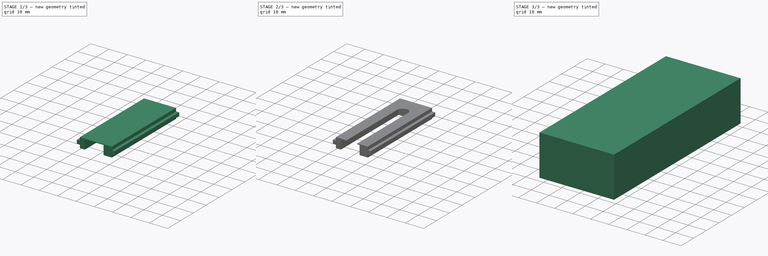
[diagram: build sequence overview — one tinted view per stage of 3, left to right]
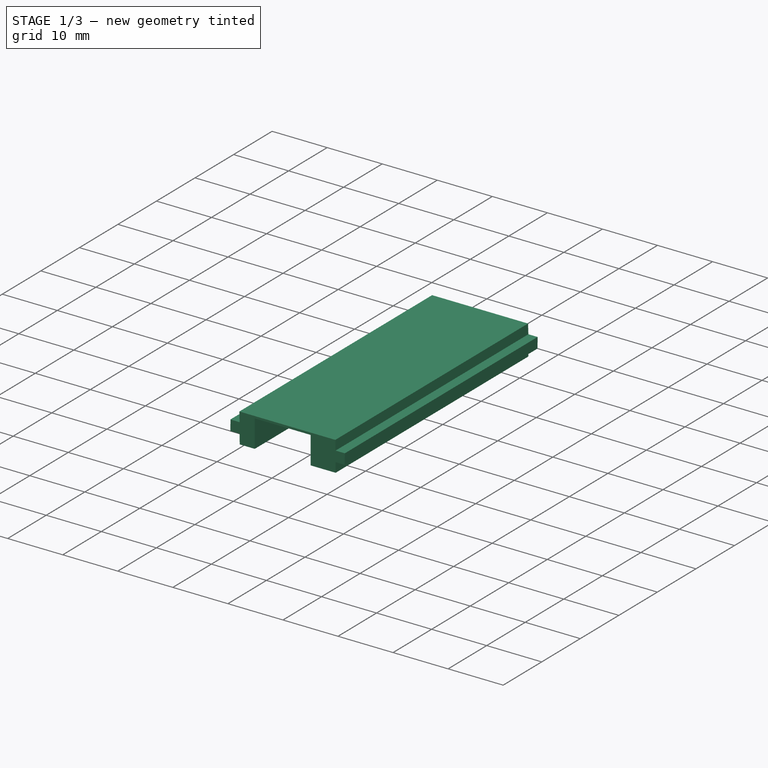
[diagram: stage 1 of 3 — iso view after this stage's code; geometry added in this stage tinted green]
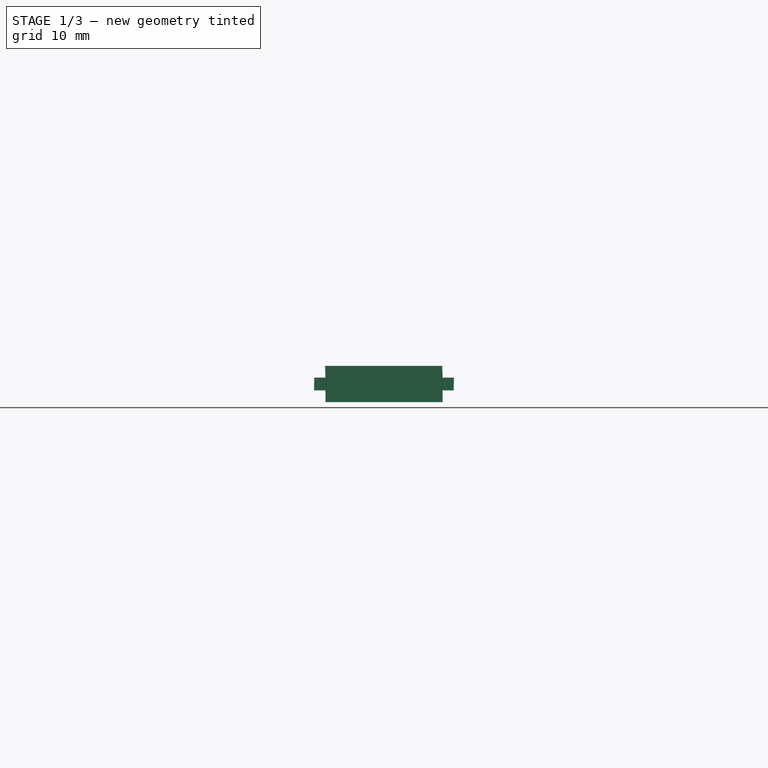
[diagram: stage 1 of 3 — front view after this stage's code; geometry added in this stage tinted green]
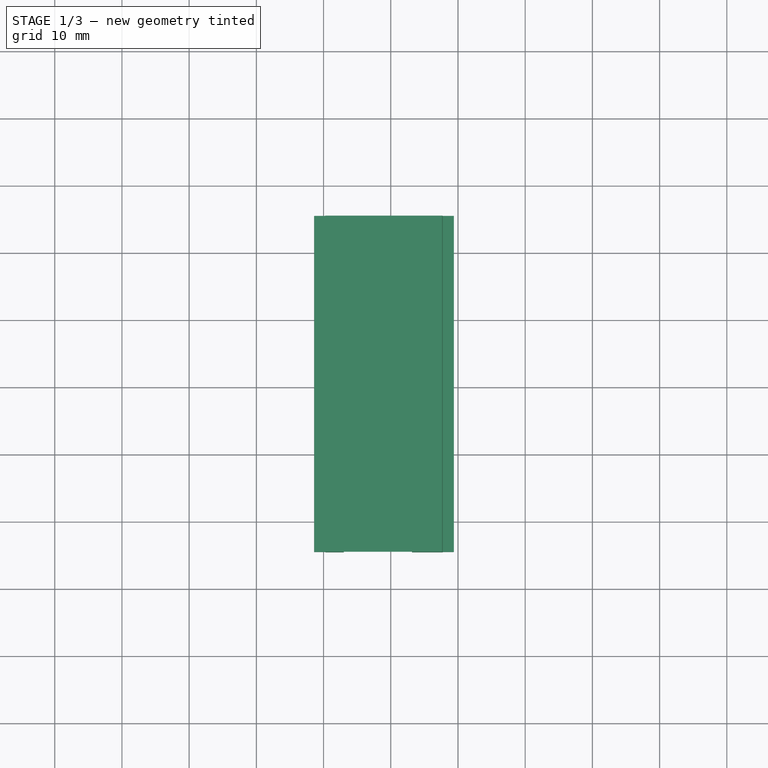
[diagram: stage 1 of 3 — top view after this stage's code; geometry added in this stage tinted green]
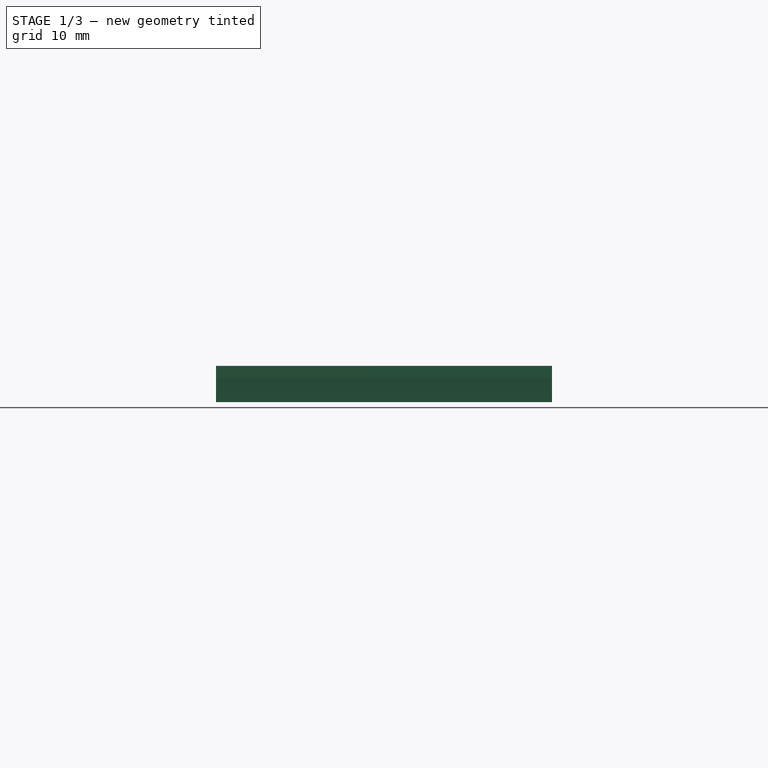
[diagram: stage 1 of 3 — right view after this stage's code; geometry added in this stage tinted green]
FCSTD DOCUMENT  (FreeCAD 0.16R6705 (Git))
Label: carrello_servo
License: All rights reserved
LicenseURL: http://it.wikipedia.org/wiki/<copyright redacted>
objects: Sketcher::SketchObject×5, PartDesign::Pocket×3, PartDesign::Pad×2, PartDesign::LinearPattern×1
note: 16 computed .brp shape members not serialized (recipe doc carries the construction recipe); baked Part::Feature solids carry a one-line shape summary decoded from their .brp

FEATURE [Sketcher::SketchObject] Sketch008
  Placement = pos=(0,25.5,0) rot=(0,0.707107,0.707107;3.14159rad)
  sketch-geometry (12):
    g0: LineSegment StartX=-87.7021 StartY=2.79224 StartZ=0 EndX=-89.376 EndY=2.79224 EndZ=0
    g1: LineSegment StartX=-89.376 StartY=2.79224 StartZ=0 EndX=-89.3807 EndY=4.69121 EndZ=0
    g2: LineSegment StartX=-89.3807 StartY=4.69121 StartZ=0 EndX=-87.7067 EndY=4.69121 EndZ=0
    g3: LineSegment StartX=-87.7067 StartY=4.69121 StartZ=0 EndX=-87.6529 EndY=6.43433 EndZ=0
    g4: LineSegment StartX=-87.6529 StartY=6.43433 StartZ=0 EndX=-70.2259 EndY=6.43433 EndZ=0
    g5: LineSegment StartX=-70.2259 StartY=6.43433 StartZ=0 EndX=-70.2801 EndY=4.69122 EndZ=0
    g6: LineSegment StartX=-70.2801 StartY=4.69122 StartZ=0 EndX=-68.6061 EndY=4.69122 EndZ=0
    g7: LineSegment StartX=-68.6061 StartY=4.69122 StartZ=0 EndX=-68.6026 EndY=2.79225 EndZ=0
    g8: LineSegment StartX=-68.6026 StartY=2.79225 StartZ=0 EndX=-70.2766 EndY=2.79225 EndZ=0
    g9: LineSegment StartX=-70.2766 StartY=2.79225 StartZ=0 EndX=-70.287 EndY=1.04833 EndZ=0
    g10: LineSegment StartX=-70.287 StartY=1.04833 StartZ=0 EndX=-87.7139 EndY=1.04833 EndZ=0
    g11: LineSegment StartX=-87.7139 StartY=1.04833 StartZ=0 EndX=-87.7021 EndY=2.79224 EndZ=0
  constraints (26):
    c: Coincident(g0,g1)
    c: Coincident(g1,g2)
    c: Coincident(g2,g3)
    c: Coincident(g3,g4)
    c: Coincident(g4,g5)
    c: Coincident(g5,g6)
    c: Coincident(g6,g7)
    c: Coincident(g7,g8)
    c: Coincident(g8,g9)
    c: Coincident(g9,g10)
    c: Coincident(g10,g11)
    c: Coincident(g11,g0)
    c: Parallel(g-1,g10)
    c: Equal(g6,g8)
    c: Equal(g8,g2)
    c: Equal(g2,g0)
    c: Equal(g1,g7)
    c: Equal(g4,g10)
    c: Equal(g9,g5)
    c: Equal(g5,g3)
    c: Equal(g3,g11)
    c: Horizontal(g4)
    c: Horizontal(g8)
    c: Horizontal(g6)
    c: Horizontal(g2)
    c: Horizontal(g0)
FEATURE [PartDesign::Pad] Pad003
  Length = 50
  Length2 = 100
  Placement = pos=(0,25.5,0) rot=(0,0.707107,0.707107;3.14159rad)
  Reversed = true
  Sketch = -> Sketch008
  Type = 0
FEATURE [Sketcher::SketchObject] Sketch009
  ExternalGeometry = -> [Pad003]
  Placement = pos=(0,25.5,1.04833) rot=(0,1,0;3.14159rad)
  Support = -> Pad003 [Face11]
  sketch-geometry (4):
    g0: LineSegment StartX=-83.1631 StartY=-5.17597 StartZ=0 EndX=-73.0258 EndY=-5.17597 EndZ=0
    g1: LineSegment StartX=-73.0258 StartY=-5.17597 StartZ=0 EndX=-73.0258 EndY=-50.1269 EndZ=0
    g2: LineSegment StartX=-73.0258 StartY=-50.1269 StartZ=0 EndX=-83.1631 EndY=-50.1269 EndZ=0
    g3: LineSegment StartX=-83.1631 StartY=-50.1269 StartZ=0 EndX=-83.1631 EndY=-5.17597 EndZ=0
  constraints (8):
    c: Coincident(g0,g1)
    c: Coincident(g1,g2)
    c: Coincident(g2,g3)
    c: Coincident(g3,g0)
    c: Horizontal(g0)
    c: Horizontal(g2)
    c: Vertical(g1)
    c: Vertical(g3)
FEATURE [PartDesign::Pocket] Pocket005
  Length = 5
  Placement = pos=(0,25.5,0) rot=(0,0.707107,0.707107;3.14159rad)
  Sketch = -> Sketch009
  Type = 0
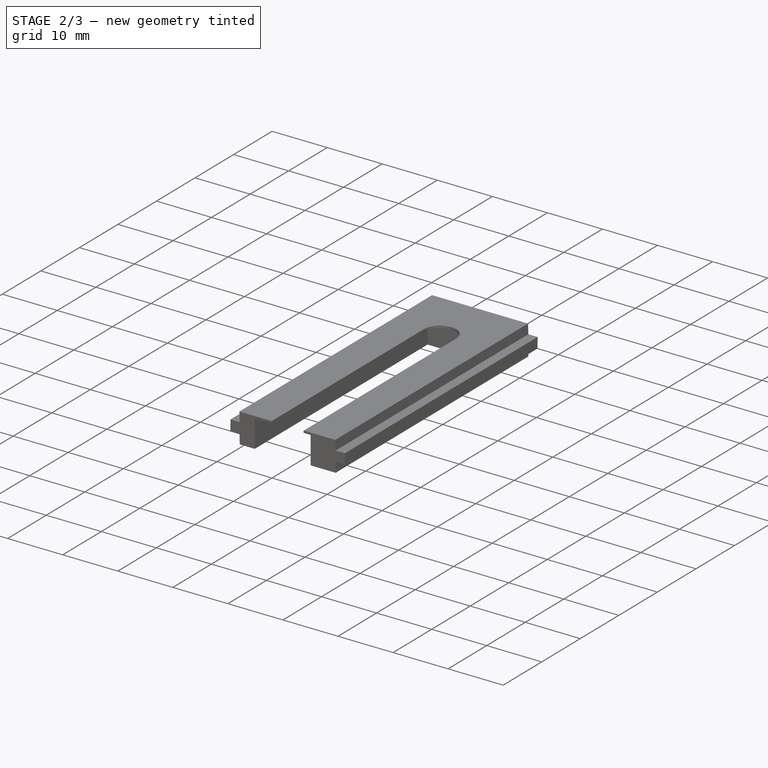
[diagram: stage 2 of 3 — iso view after this stage's code; geometry added in this stage tinted green]
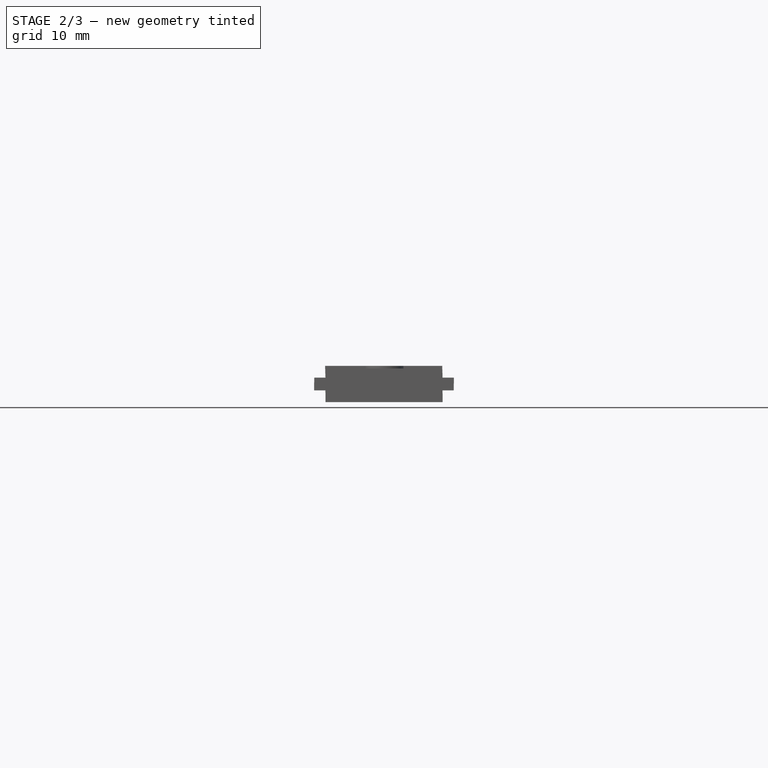
[diagram: stage 2 of 3 — front view after this stage's code; geometry added in this stage tinted green]
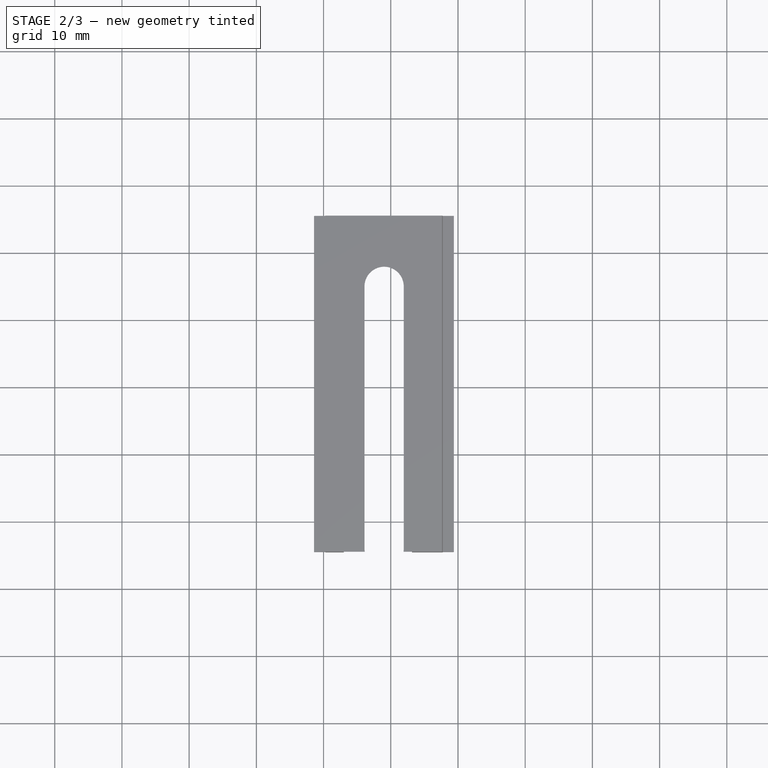
[diagram: stage 2 of 3 — top view after this stage's code; geometry added in this stage tinted green]
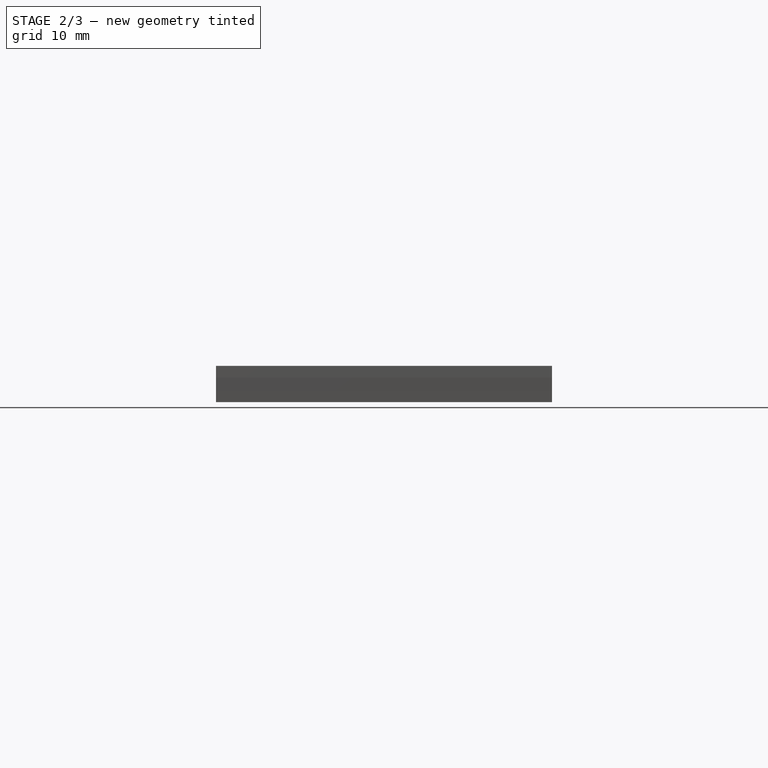
[diagram: stage 2 of 3 — right view after this stage's code; geometry added in this stage tinted green]
FEATURE [Sketcher::SketchObject] Sketch010
  Placement = pos=(0,25.5,6.04833) rot=(0,1,0;3.14159rad)
  Support = -> Pocket005 [Face16]
  sketch-geometry (4):
    g0: ArcOfCircle CenterX=-79.0109 CenterY=-10.5114 CenterZ=0 NormalX=0 NormalY=0 NormalZ=1 Radius=2.91716 StartAngle=0 EndAngle=3.14159
    g1: ArcOfCircle CenterX=-79.0109 CenterY=-49.5882 CenterZ=0 NormalX=0 NormalY=0 NormalZ=1 Radius=2.91716 StartAngle=3.14159 EndAngle=6.28319
    g2: LineSegment StartX=-81.928 StartY=-10.5114 StartZ=0 EndX=-81.928 EndY=-49.5882 EndZ=0
    g3: LineSegment StartX=-76.0937 StartY=-10.5114 StartZ=0 EndX=-76.0937 EndY=-49.5882 EndZ=0
  constraints (6):
    c: Tangent(g0,g3) = 1.5708
    c: Tangent(g0,g2) = -1.5708
    c: Tangent(g2,g1) = -1.5708
    c: Tangent(g3,g1) = 1.5708
    c: Vertical(g2)
    c: Equal(g0,g1)
FEATURE [PartDesign::Pocket] Pocket006  label="ingranaggio"
  Length = 5
  Placement = pos=(0,25.5,0) rot=(0,0.707107,0.707107;3.14159rad)
  Sketch = -> Sketch010
  Type = 1
FEATURE [Sketcher::SketchObject] Sketch012
  Placement = pos=(0,25.5,1.04833) rot=(0,1,0;3.14159rad)
  Support = -> Pocket006 [Face6]
  sketch-geometry (4):
    g0: LineSegment StartX=-85.4419 StartY=-7.33038 StartZ=0 EndX=-85.4419 EndY=-8.1529 EndZ=0
    g1: LineSegment StartX=-85.4419 StartY=-8.1529 StartZ=0 EndX=-82.3509 EndY=-8.6529 EndZ=0
    g2: LineSegment StartX=-82.3509 StartY=-8.6529 StartZ=0 EndX=-82.3509 EndY=-6.83038 EndZ=0
    g3: LineSegment StartX=-82.3509 StartY=-6.83038 StartZ=0 EndX=-85.4419 EndY=-7.33038 EndZ=0
  constraints (8):
    c: Coincident(g0,g1)
    c: Coincident(g1,g2)
    c: Coincident(g2,g3)
    c: Coincident(g3,g0)
    c: Vertical(g0)
    c: Vertical(g2)
    c: DistanceY(g0,g2) = 0.5
    c: DistanceY(g1,g0) = 0.5
FEATURE [PartDesign::Pocket] Pocket007
  Length = 4.5
  Placement = pos=(0,25.5,0) rot=(0,0.707107,0.707107;3.14159rad)
  Sketch = -> Sketch012
  Type = 0
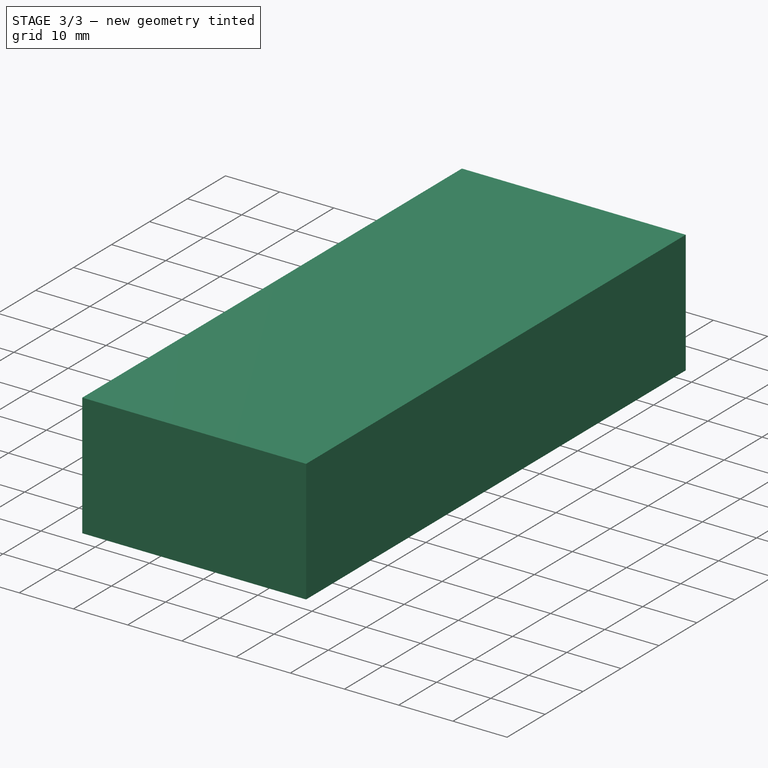
[diagram: stage 3 of 3 — iso view after this stage's code; geometry added in this stage tinted green]
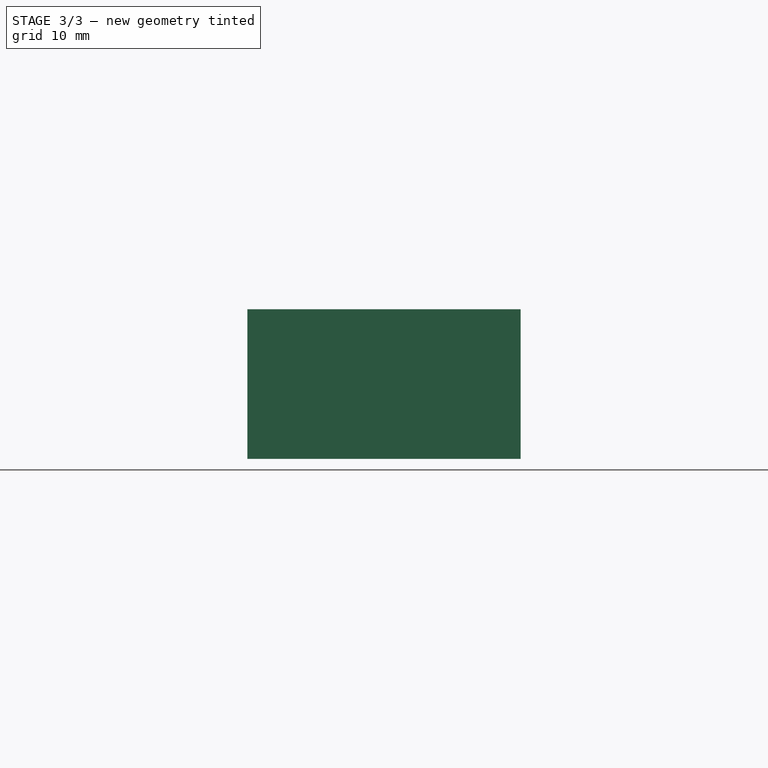
[diagram: stage 3 of 3 — front view after this stage's code; geometry added in this stage tinted green]
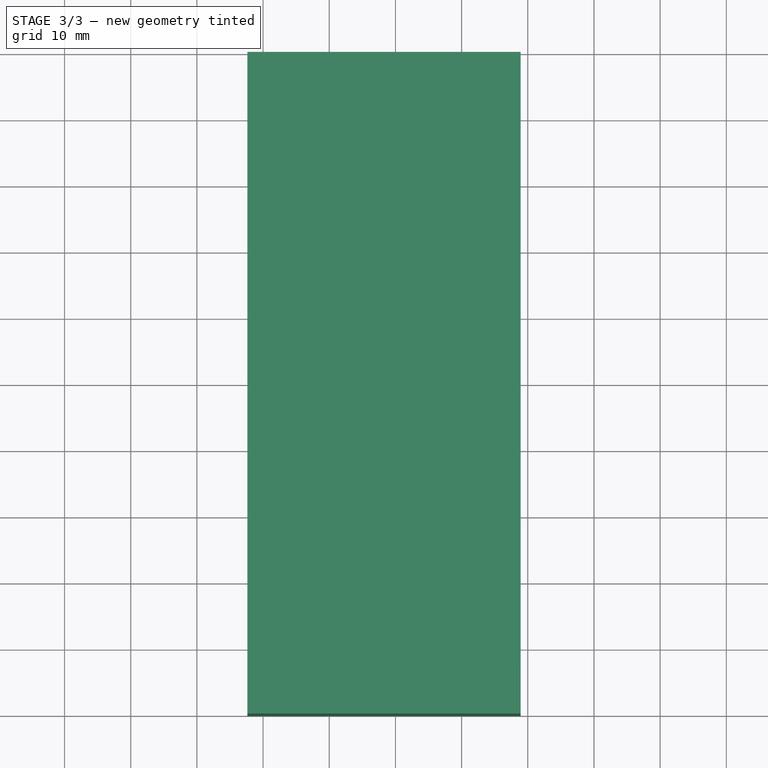
[diagram: stage 3 of 3 — top view after this stage's code; geometry added in this stage tinted green]
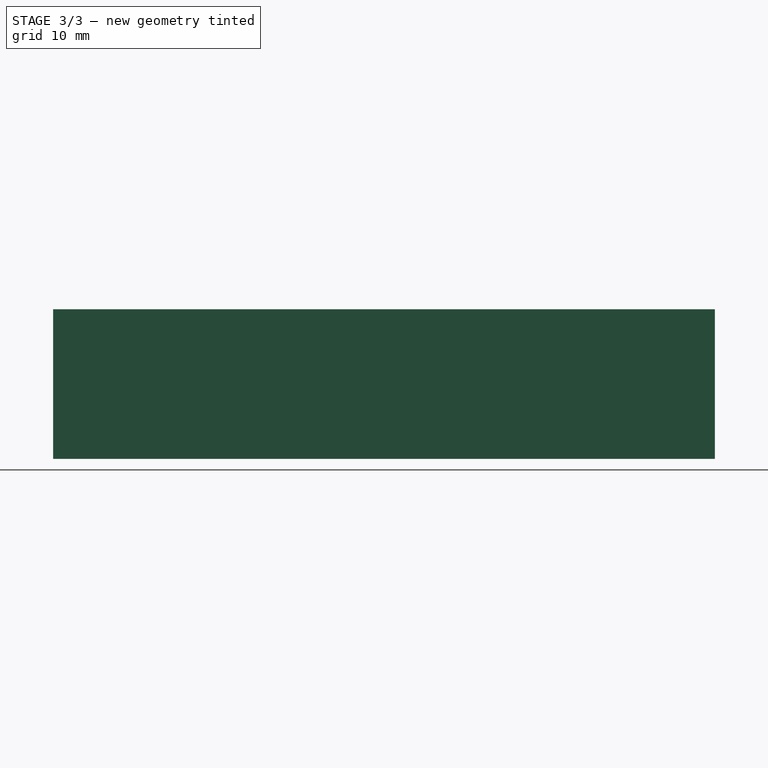
[diagram: stage 3 of 3 — right view after this stage's code; geometry added in this stage tinted green]
FEATURE [Sketcher::SketchObject] Sketch011
  Placement = pos=(0,0,0) rot=(1,0,0;1.5708rad)
  sketch-geometry (4):
    g0: LineSegment StartX=57.6292 StartY=17.94 StartZ=0 EndX=98.9158 EndY=17.94 EndZ=0
    g1: LineSegment StartX=98.9158 StartY=17.94 StartZ=0 EndX=98.9158 EndY=-4.66932 EndZ=0
    g2: LineSegment StartX=98.9158 StartY=-4.66932 StartZ=0 EndX=57.6292 EndY=-4.66932 EndZ=0
    g3: LineSegment StartX=57.6292 StartY=-4.66932 StartZ=0 EndX=57.6292 EndY=17.94 EndZ=0
  constraints (8):
    c: Coincident(g0,g1)
    c: Coincident(g1,g2)
    c: Coincident(g2,g3)
    c: Coincident(g3,g0)
    c: Horizontal(g0)
    c: Horizontal(g2)
    c: Vertical(g1)
    c: Vertical(g3)
FEATURE [PartDesign::Pad] Pad004  label="scatolozzo_selezione_prototipi"
  Length = 100
  Length2 = 100
  Midplane = true
  Placement = pos=(0,0,0) rot=(1,0,0;1.5708rad)
  Sketch = -> Sketch011
  Type = 0
FEATURE [PartDesign::LinearPattern] LinearPattern  label="pezzo_scorrevole_denti"
  Direction = -> Sketch012 [V_Axis]
  Length = 100
  Occurrences = 50
  Originals = -> [Pocket007]
  Placement = pos=(0,25.5,0) rot=(0,0.707107,0.707107;3.14159rad)
  Reversed = true
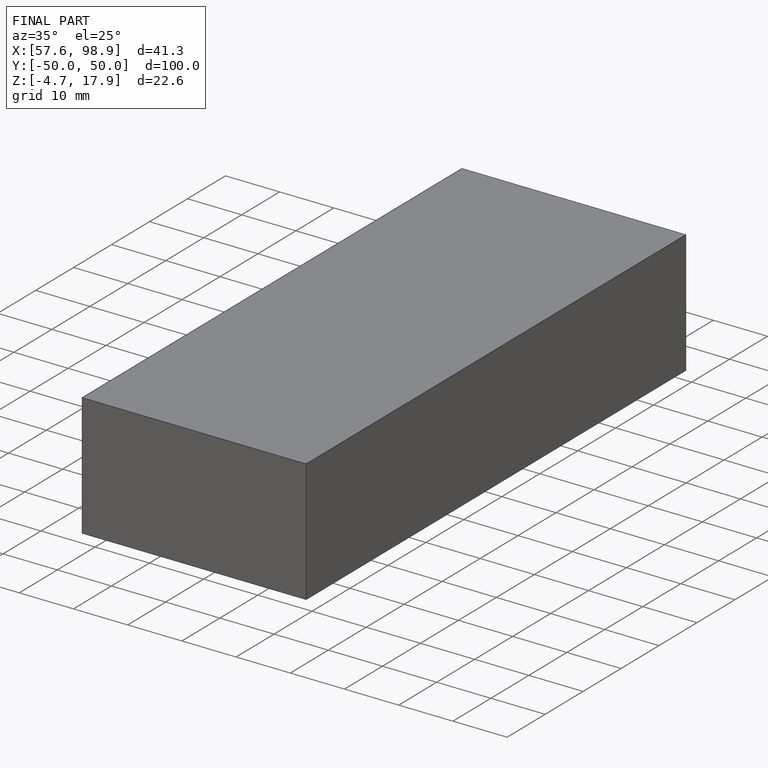
[diagram: finished part — iso view with bounding-box wireframe]
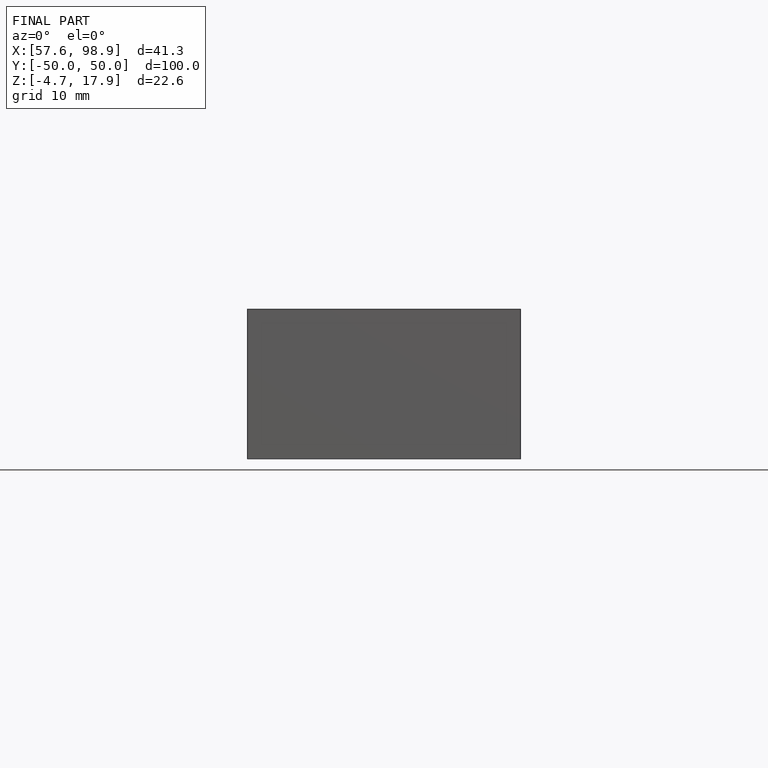
[diagram: finished part — front view with bounding-box wireframe]
